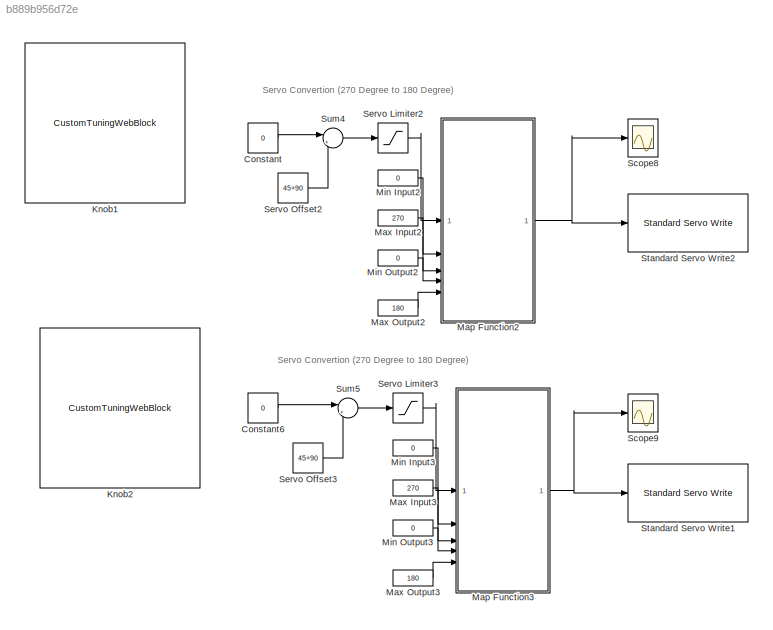
MODEL slx_b889b956d72e
KIND model
CONFIG AbsTol = auto
CONFIG EnableMultiTasking = on
CONFIG FixedStep = auto
CONFIG MaxStep = auto
CONFIG MinStep = auto
CONFIG RelTol = 1e-3
CONFIG SampleTimeConstraint = Unconstrained
CONFIG SolverName = FixedStepAuto
CONFIG StartTime = 0.0
CONFIG StopTime = inf
BLOCK [Constant] Constant
  Value = 0
BLOCK [Constant] Constant6
  Value = 0
BLOCK [CustomTuningWebBlock] Knob1
  Configuration = {"components":[{"name":"CircularScaleComponent","settings":{"bounds":{"max":90,"min":-90,"tickInterval":"auto"},"direction":"cw","flipLimits":0,"innerRadius":0.6636618227670849,"internalTickHeightScaleFactor":1,"labelColor":[255,255,200],"labelFont":{"font":"Arial","fontSize":12},"labelRadius":0.79,"labelTransparency":1,"minorTickHeightScaleFactor":0.2,"needleImage":{"size":[150,150],"src":"data:i...<+43671ch>
  LabelPosition = Hide
  ShowInitialText = on
BLOCK [CustomTuningWebBlock] Knob2
  Configuration = {"components":[{"name":"CircularScaleComponent","settings":{"bounds":{"max":90,"min":-90,"tickInterval":"auto"},"direction":"cw","flipLimits":0,"innerRadius":0.6636618227670849,"internalTickHeightScaleFactor":1,"labelColor":[255,255,200],"labelFont":{"font":"Arial","fontSize":12},"labelRadius":0.79,"labelTransparency":1,"minorTickHeightScaleFactor":0.2,"needleImage":{"size":[150,150],"src":"data:i...<+43671ch>
  LabelPosition = Hide
  ShowInitialText = on
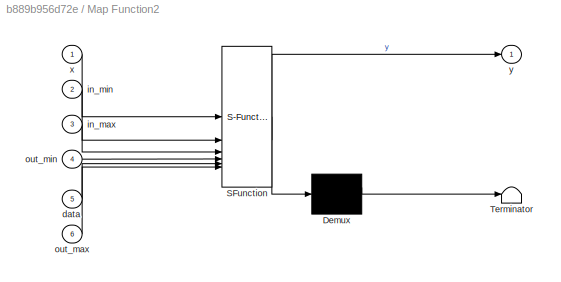
BLOCK [SubSystem] Map Function2
  ErrorFcn = Stateflow.Translate.translate
  PermitHierarchicalResolution = ExplicitOnly
  SFBlockType = MATLAB Function
  TreatAsAtomicUnit = on
BLOCK [Demux] Map Function2/ Demux 
  Outputs = 1
BLOCK [S-Function] Map Function2/ SFunction 
  EnableBusSupport = on
  FunctionName = sf_sfun
  PortCounts = [6 2]
  SFcnIsStateOwnerBlock = off
  SFunctionDeploymentMode = off
  Tag = Stateflow S-Function 4
BLOCK [Terminator] Map Function2/ Terminator 
BLOCK [Inport] Map Function2/data
  Port = 5
BLOCK [Inport] Map Function2/in_max
  Port = 3
BLOCK [Inport] Map Function2/in_min
  Port = 2
BLOCK [Inport] Map Function2/out_max
  Port = 6
BLOCK [Inport] Map Function2/out_min
  Port = 4
BLOCK [Inport] Map Function2/x
BLOCK [Outport] Map Function2/y
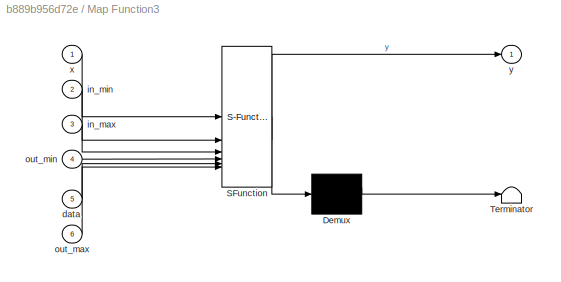
BLOCK [SubSystem] Map Function3
  ErrorFcn = Stateflow.Translate.translate
  PermitHierarchicalResolution = ExplicitOnly
  SFBlockType = MATLAB Function
  TreatAsAtomicUnit = on
BLOCK [Demux] Map Function3/ Demux 
  Outputs = 1
BLOCK [S-Function] Map Function3/ SFunction 
  EnableBusSupport = on
  FunctionName = sf_sfun
  PortCounts = [6 2]
  SFcnIsStateOwnerBlock = off
  SFunctionDeploymentMode = off
  Tag = Stateflow S-Function 5
BLOCK [Terminator] Map Function3/ Terminator 
BLOCK [Inport] Map Function3/data
  Port = 5
BLOCK [Inport] Map Function3/in_max
  Port = 3
BLOCK [Inport] Map Function3/in_min
  Port = 2
BLOCK [Inport] Map Function3/out_max
  Port = 6
BLOCK [Inport] Map Function3/out_min
  Port = 4
BLOCK [Inport] Map Function3/x
BLOCK [Outport] Map Function3/y
BLOCK [Constant] Max Input2
  Value = 270
BLOCK [Constant] Max Input3
  Value = 270
BLOCK [Constant] Max Output2
  Value = 180
BLOCK [Constant] Max Output3
  Value = 180
BLOCK [Constant] Min Input2
  Value = 0
BLOCK [Constant] Min Input3
  Value = 0
BLOCK [Constant] Min Output2
  Value = 0
BLOCK [Constant] Min Output3
  Value = 0
BLOCK [Scope] Scope8
  Floating = off
  NumInputPorts = 1
  ScopeSpecificationString = Simulink.scopes.TimeScopeBlockCfg('CurrentConfiguration', extmgr.ConfigurationSet(extmgr.Configuration('Core','General UI',true),extmgr.Configuration('Core','Source UI',true),extmgr.Configuration('Sources','WiredSimulink',true,'DataLoggingVariableName','ScopeData4'),extmgr.Configuration('Visuals','Time Domain',true,'SerializedDisplays',{struct('MinYLimReal','15.00000','MaxYLimReal','165.00000','YL...<+1580ch>
BLOCK [Scope] Scope9
  Floating = off
  NumInputPorts = 1
  ScopeSpecificationString = Simulink.scopes.TimeScopeBlockCfg('CurrentConfiguration', extmgr.ConfigurationSet(extmgr.Configuration('Core','General UI',true),extmgr.Configuration('Core','Source UI',true),extmgr.Configuration('Sources','WiredSimulink',true,'DataLoggingVariableName','ScopeData8'),extmgr.Configuration('Visuals','Time Domain',true,'SerializedDisplays',{struct('MinYLimReal','90.27057','MaxYLimReal','90.77885','YLa...<+1575ch>
BLOCK [Saturate] Servo Limiter2
  LowerLimit = 45
  UpperLimit = 225
BLOCK [Saturate] Servo Limiter3
  LowerLimit = 45
  UpperLimit = 225
BLOCK [Constant] Servo Offset2
  Value = 45+90
BLOCK [Constant] Servo Offset3
  Value = 45+90
BLOCK [Reference] Standard Servo Write1  REF=arduinolib/Standard Servo Write
  SourceBlock = arduinolib/Standard Servo Write
  SourceType = Arduino Standard Servo Write
BLOCK [Reference] Standard Servo Write2  REF=arduinolib/Standard Servo Write
  SourceBlock = arduinolib/Standard Servo Write
  SourceType = Arduino Standard Servo Write
BLOCK [Sum] Sum4
  Inputs = |++
BLOCK [Sum] Sum5
  Inputs = |++
ANNOTATION (root): Servo Convertion (270 Degree to 180 Degree)
LINE Constant6:1 -> Sum5:1
LINE Constant:1 -> Sum4:1
NET Map Function2:1 -> Scope8:1, Standard Servo Write2:1
NET Map Function3:1 -> Scope9:1, Standard Servo Write1:1
LINE Max Input2:1 -> Map Function2:3
LINE Max Input3:1 -> Map Function3:3
LINE Max Output2:1 -> Map Function2:6
LINE Max Output3:1 -> Map Function3:6
LINE Min Input2:1 -> Map Function2:2
LINE Min Input3:1 -> Map Function3:2
LINE Min Output2:1 -> Map Function2:4
LINE Min Output3:1 -> Map Function3:4
LINE Servo Limiter2:1 -> Map Function2:1
LINE Servo Limiter3:1 -> Map Function3:1
LINE Servo Offset2:1 -> Sum4:2
LINE Servo Offset3:1 -> Sum5:2
LINE Sum4:1 -> Servo Limiter2:1
LINE Sum5:1 -> Servo Limiter3:1
note: NET lines group one-source signal fan-out (src -> all destinations, sorted); 1:1 wires keep LINE
CHART Map Function2 states=1 transitions=1
  STATE_LABEL 'eML_blk_kernel()'
  STATE_LABEL 'SCRIPT:\nfunction y = map(x,in_min,in_max,out_min,data, out_max)\n    y = (x - in_min) * (out_max - out_min) / (in_max - in_min) + out_min;\nend'
CHART Map Function3 states=1 transitions=1
  STATE_LABEL 'eML_blk_kernel()'
  STATE_LABEL 'SCRIPT:\nfunction y = map(x,in_min,in_max,out_min,data, out_max)\n    y = (x - in_min) * (out_max - out_min) / (in_max - in_min) + out_min;\nend'
CHART  states=0 transitions=0
CHART  states=0 transitions=0
